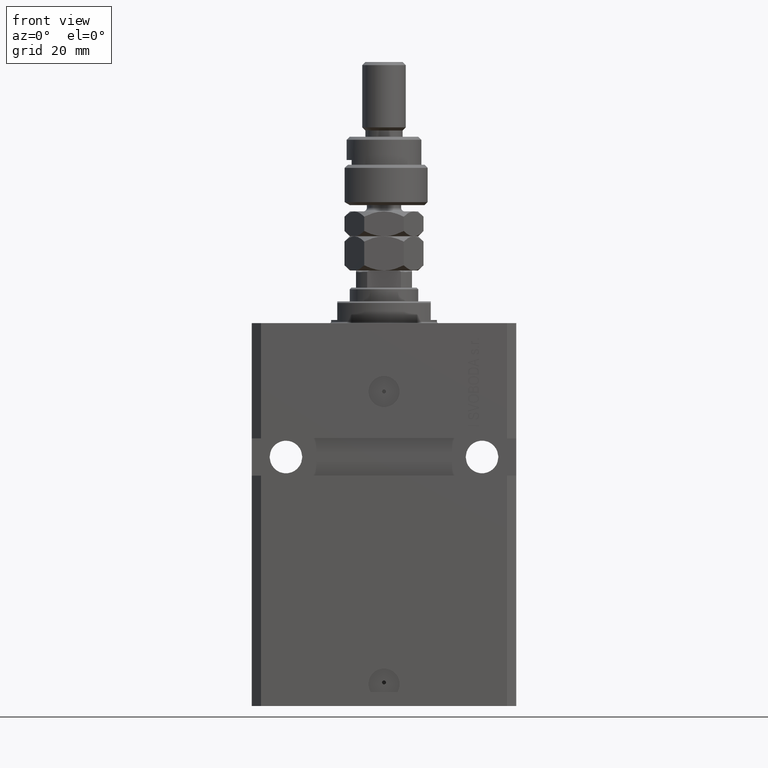
[diagram: clean part render]
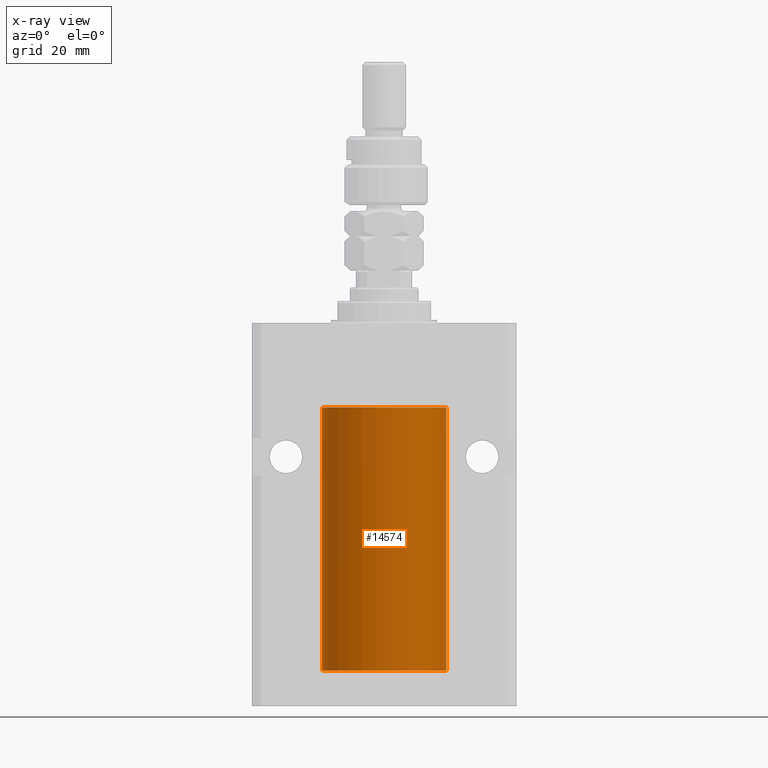
[diagram: x-ray — body ghosted, one internal face saturated and labeled with its STEP entity id]
A machine part, front view, then the same camera in x-ray: the body is ghosted and one INTERNAL B-rep face — a face not visible from any outside direction — is saturated and labeled: STEP entity #14574.
In plain terms, the highlighted cylindrical surface (partial cylindrical patch) has radius 20 mm, axis along (0, 0, 1).
Its self-contained STEP definition (entity closure, byte-faithful):
#867 = LINE ( 'NONE', #16579, #7914 ) ;
#2174 = CARTESIAN_POINT ( 'NONE',  ( 0.000000000000000000, 0.000000000000000000, -111.6000000000000085 ) ) ;
#2291 = VERTEX_POINT ( 'NONE', #30525 ) ;
#2575 = CARTESIAN_POINT ( 'NONE',  ( -20.00000000000000000, -0.1651542110816476838, -108.3750000000000142 ) ) ;
#3505 = CARTESIAN_POINT ( 'NONE',  ( 19.99766246719553209, -0.3267907458473873761, -109.5571608607969267 ) ) ;
#3521 = ORIENTED_EDGE ( 'NONE', *, *, #41048, .F. ) ;
#3522 = ORIENTED_EDGE ( 'NONE', *, *, #47189, .T. ) ;
#5226 = CARTESIAN_POINT ( 'NONE',  ( 20.00000000000000000, 0.000000000000000000, -111.6000000000000085 ) ) ;
#5600 = B_SPLINE_CURVE_WITH_KNOTS ( 'NONE', 3,
 ( #50228, #46604, #7470, #50474, #11575, #33996, #31142, #41982, #2575, #14936 ),
 .UNSPECIFIED., .F., .F.,
 ( 4, 2, 2, 2, 4 ),
 ( 0.001954154509844217673, 0.002442582466643778739, 0.002931010423443339372, 0.003419438380242900005, 0.003907866337042461072 ),
 .UNSPECIFIED. ) ;
#5682 = AXIS2_PLACEMENT_3D ( 'NONE', #46205, #39229, #35362 ) ;
#6040 = FACE_OUTER_BOUND ( 'NONE', #8315, .T. ) ;
#7470 = CARTESIAN_POINT ( 'NONE',  ( -19.99767054355995555, -0.3263099029014887020, -109.5574110824076541 ) ) ;
#7914 = VECTOR ( 'NONE', #27921, 1000.000000000000000 ) ;
#8183 = CIRCLE ( 'NONE', #5682, 20.00000000000000000 ) ;
#8315 = EDGE_LOOP ( 'NONE', ( #22574, #3522, #25202, #27443, #46825, #3521, #47535, #19548, #46784 ) ) ;
#9332 = VECTOR ( 'NONE', #22856, 1000.000000000000000 ) ;
#11575 = CARTESIAN_POINT ( 'NONE',  ( -19.99023630310506761, -0.6248620367829642586, -109.1653813832953404 ) ) ;
#12458 = DIRECTION ( 'NONE',  ( -0.000000000000000000, -0.000000000000000000, 1.000000000000000000 ) ) ;
#12700 = LINE ( 'NONE', #36908, #34115 ) ;
#14138 = VERTEX_POINT ( 'NONE', #29038 ) ;
#14574 = ADVANCED_FACE ( 'NONE', ( #6040 ), #37448, .F. ) ;
#14936 = CARTESIAN_POINT ( 'NONE',  ( -20.00000000000000000, -1.494965790691426527E-14, -108.3750000000000000 ) ) ;
#15365 = CARTESIAN_POINT ( 'NONE',  ( 19.99256494106949944, -0.5573539455062719306, -109.3264613235961065 ) ) ;
#16579 = CARTESIAN_POINT ( 'NONE',  ( -20.00000000000000000, 2.449293598294706513E-15, -111.6000000000000085 ) ) ;
#17580 = CIRCLE ( 'NONE', #22507, 20.00000000000000000 ) ;
#17637 = VERTEX_POINT ( 'NONE', #28627 ) ;
#17902 = DIRECTION ( 'NONE',  ( -0.000000000000000000, -0.000000000000000000, 1.000000000000000000 ) ) ;
#18236 = CARTESIAN_POINT ( 'NONE',  ( 20.00000000000000000, 0.000000000000000000, -111.6000000000000085 ) ) ;
#18738 = LINE ( 'NONE', #18236, #9332 ) ;
#19548 = ORIENTED_EDGE ( 'NONE', *, *, #20582, .T. ) ;
#20582 = EDGE_CURVE ( 'NONE', #29385, #14138, #44078, .T. ) ;
#21694 = CARTESIAN_POINT ( 'NONE',  ( 19.99023198964933812, -0.6250000000000827116, -109.0000000000000000 ) ) ;
#22137 = AXIS2_PLACEMENT_3D ( 'NONE', #2174, #17902, #29737 ) ;
#22507 = AXIS2_PLACEMENT_3D ( 'NONE', #22957, #24412, #27077 ) ;
#22574 = ORIENTED_EDGE ( 'NONE', *, *, #37891, .F. ) ;
#22585 = CARTESIAN_POINT ( 'NONE',  ( 20.00000000000000000, -4.058908006348821872E-15, -109.6250000000000000 ) ) ;
#22856 = DIRECTION ( 'NONE',  ( -0.000000000000000000, -0.000000000000000000, 1.000000000000000000 ) ) ;
#22957 = CARTESIAN_POINT ( 'NONE',  ( 0.000000000000000000, 0.000000000000000000, -111.6000000000000085 ) ) ;
#23455 = CARTESIAN_POINT ( 'NONE',  ( -20.00000000000000000, -1.494965790691426527E-14, -108.3750000000000000 ) ) ;
#24412 = DIRECTION ( 'NONE',  ( 0.000000000000000000, 0.000000000000000000, 1.000000000000000000 ) ) ;
#25069 = CARTESIAN_POINT ( 'NONE',  ( 19.99023198964933812, -0.6250000000000827116, -109.0000000000000000 ) ) ;
#25202 = ORIENTED_EDGE ( 'NONE', *, *, #47636, .T. ) ;
#25312 = CARTESIAN_POINT ( 'NONE',  ( 20.00000000000000000, -0.1632180151482451602, -108.3749999999998295 ) ) ;
#25363 = EDGE_CURVE ( 'NONE', #2291, #17637, #8183, .T. ) ;
#26105 = EDGE_CURVE ( 'NONE', #47276, #14138, #38653, .T. ) ;
#27077 = DIRECTION ( 'NONE',  ( 1.000000000000000000, 0.000000000000000000, 0.000000000000000000 ) ) ;
#27443 = ORIENTED_EDGE ( 'NONE', *, *, #43653, .T. ) ;
#27921 = DIRECTION ( 'NONE',  ( -0.000000000000000000, -0.000000000000000000, 1.000000000000000000 ) ) ;
#28627 = CARTESIAN_POINT ( 'NONE',  ( 20.00000000000000000, 0.000000000000000000, -27.10000000000000142 ) ) ;
#29038 = CARTESIAN_POINT ( 'NONE',  ( 20.00000000000000000, -4.058908006348821872E-15, -109.6250000000000000 ) ) ;
#29385 = VERTEX_POINT ( 'NONE', #25069 ) ;
#29581 = VECTOR ( 'NONE', #46896, 1000.000000000000000 ) ;
#29667 = CARTESIAN_POINT ( 'NONE',  ( 20.00000000000010303, 3.555666352936568165E-13, -108.3749999999966747 ) ) ;
#29737 = DIRECTION ( 'NONE',  ( 1.000000000000000000, 0.000000000000000000, 0.000000000000000000 ) ) ;
#30525 = CARTESIAN_POINT ( 'NONE',  ( -20.00000000000000000, 2.449293598294706513E-15, -27.10000000000000142 ) ) ;
#30568 = CARTESIAN_POINT ( 'NONE',  ( 20.00000000000010303, 3.555666352936568165E-13, -108.3749999999966747 ) ) ;
#30569 = CARTESIAN_POINT ( 'NONE',  ( 19.99023198964933812, -0.6250000000000827116, -109.0000000000000000 ) ) ;
#31142 = CARTESIAN_POINT ( 'NONE',  ( -19.99255948581289033, -0.5575529953197871924, -108.6738333567126631 ) ) ;
#31208 = CARTESIAN_POINT ( 'NONE',  ( -20.00000000000000000, 2.449293598294706513E-15, -111.6000000000000085 ) ) ;
#32004 = EDGE_CURVE ( 'NONE', #32627, #29385, #44436, .T. ) ;
#32627 = VERTEX_POINT ( 'NONE', #30568 ) ;
#33996 = CARTESIAN_POINT ( 'NONE',  ( -19.99022768983530440, -0.6251375268966076204, -108.8356630308822162 ) ) ;
#34029 = CARTESIAN_POINT ( 'NONE',  ( 19.99023198964933812, -0.6250000000000828226, -108.8350317194948502 ) ) ;
#34115 = VECTOR ( 'NONE', #12458, 1000.000000000000000 ) ;
#34794 = CARTESIAN_POINT ( 'NONE',  ( 20.00000000000000000, 0.000000000000000000, -111.6000000000000085 ) ) ;
#35362 = DIRECTION ( 'NONE',  ( 1.000000000000000000, 0.000000000000000000, 0.000000000000000000 ) ) ;
#36881 = CARTESIAN_POINT ( 'NONE',  ( 19.99766790699043995, -0.3264769477312362556, -108.4426606383000546 ) ) ;
#36908 = CARTESIAN_POINT ( 'NONE',  ( -20.00000000000000000, 2.449293598294706513E-15, -111.6000000000000085 ) ) ;
#37138 = CARTESIAN_POINT ( 'NONE',  ( 19.99257096259849931, -0.5571491910957669935, -108.6731986224609869 ) ) ;
#37448 = CYLINDRICAL_SURFACE ( 'NONE', #22137, 20.00000000000000000 ) ;
#37891 = EDGE_CURVE ( 'NONE', #39698, #47276, #17580, .T. ) ;
#38653 = LINE ( 'NONE', #34794, #29581 ) ;
#39229 = DIRECTION ( 'NONE',  ( 0.000000000000000000, 0.000000000000000000, 1.000000000000000000 ) ) ;
#39698 = VERTEX_POINT ( 'NONE', #31208 ) ;
#41048 = EDGE_CURVE ( 'NONE', #32627, #17637, #18738, .T. ) ;
#41711 = CARTESIAN_POINT ( 'NONE',  ( -20.00000000000010303, 3.580159290815452135E-13, -109.6250000000033253 ) ) ;
#41982 = CARTESIAN_POINT ( 'NONE',  ( -19.99765984516762174, -0.3269569594424159842, -108.4429100894329991 ) ) ;
#43653 = EDGE_CURVE ( 'NONE', #49492, #2291, #12700, .T. ) ;
#44078 = B_SPLINE_CURVE_WITH_KNOTS ( 'NONE', 3,
 ( #30569, #50655, #15365, #3505, #46275, #22585 ),
 .UNSPECIFIED., .F., .F.,
 ( 4, 2, 4 ),
 ( 0.002931526102908805446, 0.003419696219975630440, 0.003907866337042455000 ),
 .UNSPECIFIED. ) ;
#44436 = B_SPLINE_CURVE_WITH_KNOTS ( 'NONE', 3,
 ( #29667, #25312, #36881, #37138, #34029, #21694 ),
 .UNSPECIFIED., .F., .F.,
 ( 4, 2, 4 ),
 ( 0.001954154509844075859, 0.002442840306376440652, 0.002931526102908805446 ),
 .UNSPECIFIED. ) ;
#46205 = CARTESIAN_POINT ( 'NONE',  ( 0.000000000000000000, 0.000000000000000000, -27.10000000000000142 ) ) ;
#46275 = CARTESIAN_POINT ( 'NONE',  ( 20.00000000000000000, -0.1650670266421430665, -109.6250000000000284 ) ) ;
#46604 = CARTESIAN_POINT ( 'NONE',  ( -20.00000000000000355, -0.1631318982819179308, -109.6250000000001279 ) ) ;
#46784 = ORIENTED_EDGE ( 'NONE', *, *, #26105, .F. ) ;
#46825 = ORIENTED_EDGE ( 'NONE', *, *, #25363, .T. ) ;
#46896 = DIRECTION ( 'NONE',  ( -0.000000000000000000, -0.000000000000000000, 1.000000000000000000 ) ) ;
#47189 = EDGE_CURVE ( 'NONE', #39698, #50362, #867, .T. ) ;
#47276 = VERTEX_POINT ( 'NONE', #5226 ) ;
#47535 = ORIENTED_EDGE ( 'NONE', *, *, #32004, .T. ) ;
#47636 = EDGE_CURVE ( 'NONE', #50362, #49492, #5600, .T. ) ;
#49492 = VERTEX_POINT ( 'NONE', #23455 ) ;
#50228 = CARTESIAN_POINT ( 'NONE',  ( -20.00000000000010303, 3.580159290815452135E-13, -109.6250000000033253 ) ) ;
#50362 = VERTEX_POINT ( 'NONE', #41711 ) ;
#50474 = CARTESIAN_POINT ( 'NONE',  ( -19.99257639367449357, -0.5569510432580383474, -109.3270944862517098 ) ) ;
#50655 = CARTESIAN_POINT ( 'NONE',  ( 19.99023198964934167, -0.6250000000000828226, -109.1647941998272842 ) ) ;